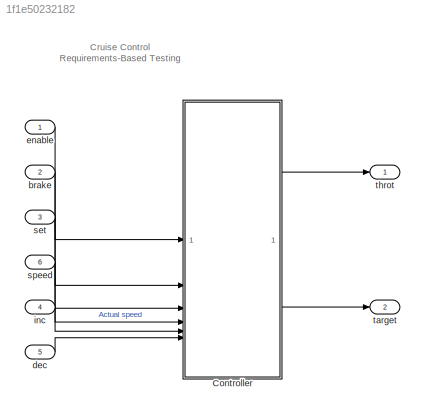
MODEL slx_1f1e50232182
KIND model
CONFIG AbsTol = auto
CONFIG EnableMultiTasking = on
CONFIG FixedStep = 0.01
CONFIG MaxStep = auto
CONFIG MinStep = auto
CONFIG RelTol = 1e-3
CONFIG SampleTimeConstraint = Unconstrained
CONFIG SolverName = FixedStepDiscrete
CONFIG StartTime = 0.0
CONFIG StopTime = 10.0
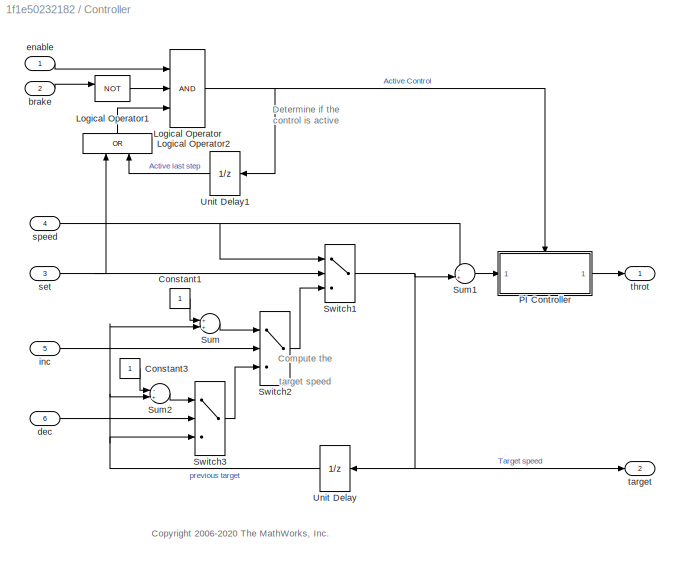
BLOCK [SubSystem] Controller
BLOCK [Constant] Controller/Constant1
BLOCK [Constant] Controller/Constant3
BLOCK [Logic] Controller/Logical Operator
  AllPortsSameDT = off
  Inputs = 3
  OutDataTypeStr = boolean
BLOCK [Logic] Controller/Logical Operator1
  AllPortsSameDT = off
  Operator = NOT
  OutDataTypeStr = boolean
BLOCK [Logic] Controller/Logical Operator2
  AllPortsSameDT = off
  NameLocation = right
  Operator = OR
  OutDataTypeStr = boolean
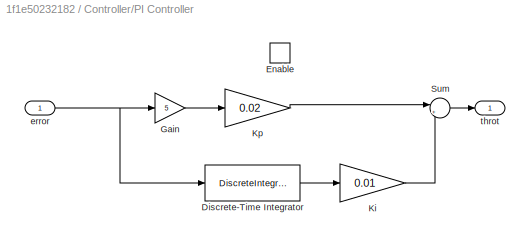
BLOCK [SubSystem] Controller/PI Controller
BLOCK [DiscreteIntegrator] Controller/PI Controller/Discrete-Time Integrator
  ICPrevOutput = DiscIntNeverNeededParam
  ICPrevScaledInput = DiscIntNeverNeededParam
  LimitOutput = on
  LowerSaturationLimit = -5
  SampleTime = 0.01
  UpperSaturationLimit = 5
BLOCK [EnablePort] Controller/PI Controller/Enable
BLOCK [Gain] Controller/PI Controller/Gain
  Gain = 5
BLOCK [Gain] Controller/PI Controller/Ki
  Gain = 0.01
BLOCK [Gain] Controller/PI Controller/Kp
  Gain = 0.02
BLOCK [Sum] Controller/PI Controller/Sum
  Inputs = |++
BLOCK [Inport] Controller/PI Controller/error
BLOCK [Outport] Controller/PI Controller/throt
  VectorParamsAs1DForOutWhenUnconnected = off
BLOCK [Sum] Controller/Sum
  Inputs = ++|
BLOCK [Sum] Controller/Sum1
  Inputs = -+|
BLOCK [Sum] Controller/Sum2
  Inputs = -+|
BLOCK [Switch] Controller/Switch1
  Criteria = u2 ~= 0
  InputSameDT = off
  SaturateOnIntegerOverflow = off
BLOCK [Switch] Controller/Switch2
  Criteria = u2 ~= 0
  InputSameDT = off
  SaturateOnIntegerOverflow = off
BLOCK [Switch] Controller/Switch3
  Criteria = u2 ~= 0
  InputSameDT = off
  SaturateOnIntegerOverflow = off
BLOCK [UnitDelay] Controller/Unit Delay
  HasFrameUpgradeWarning = on
  NameLocation = top
  SampleTime = 0.01
BLOCK [UnitDelay] Controller/Unit Delay1
  HasFrameUpgradeWarning = on
  NameLocation = top
  SampleTime = 0.01
BLOCK [Inport] Controller/brake
  OutDataTypeStr = boolean
  Port = 2
BLOCK [Inport] Controller/dec
  OutDataTypeStr = boolean
  Port = 6
BLOCK [Inport] Controller/enable
  NameLocation = top
  OutDataTypeStr = boolean
BLOCK [Inport] Controller/inc
  OutDataTypeStr = boolean
  Port = 5
BLOCK [Inport] Controller/set
  OutDataTypeStr = boolean
  Port = 3
BLOCK [Inport] Controller/speed
  OutDataTypeStr = double
  Port = 4
BLOCK [Outport] Controller/target
  Port = 2
  VectorParamsAs1DForOutWhenUnconnected = off
BLOCK [Outport] Controller/throt
  VectorParamsAs1DForOutWhenUnconnected = off
BLOCK [Inport] brake
  OutDataTypeStr = boolean
  Port = 2
BLOCK [Inport] dec
  OutDataTypeStr = boolean
  Port = 5
BLOCK [Inport] enable
  OutDataTypeStr = boolean
BLOCK [Inport] inc
  OutDataTypeStr = boolean
  Port = 4
BLOCK [Inport] set
  OutDataTypeStr = boolean
  Port = 3
BLOCK [Inport] speed
  OutDataTypeStr = double
  Port = 6
BLOCK [Outport] target
  Port = 2
  VectorParamsAs1DForOutWhenUnconnected = off
BLOCK [Outport] throt
  VectorParamsAs1DForOutWhenUnconnected = off
ANNOTATION (root): Cruise Control Requirements-Based Testing
ANNOTATION Controller: Compute the target speed
ANNOTATION Controller: <copyright redacted>
ANNOTATION Controller: Determine if the control is active
LINE Controller/Constant1:1 -> Controller/Sum:1
LINE Controller/Constant3:1 -> Controller/Sum2:1
LINE Controller/Logical Operator1:1 -> Controller/Logical Operator:2
LINE Controller/Logical Operator2:1 -> Controller/Logical Operator:3
NET Controller/Logical Operator:1 -> Controller/PI Controller:enable, Controller/Unit Delay1:1
LINE Controller/PI Controller/Discrete-Time Integrator:1 -> Controller/PI Controller/Ki:1
LINE Controller/PI Controller/Gain:1 -> Controller/PI Controller/Kp:1
LINE Controller/PI Controller/Ki:1 -> Controller/PI Controller/Sum:2
LINE Controller/PI Controller/Kp:1 -> Controller/PI Controller/Sum:1
LINE Controller/PI Controller/Sum:1 -> Controller/PI Controller/throt:1
NET Controller/PI Controller/error:1 -> Controller/PI Controller/Discrete-Time Integrator:1, Controller/PI Controller/Gain:1
LINE Controller/PI Controller:1 -> Controller/throt:1
LINE Controller/Sum1:1 -> Controller/PI Controller:1
LINE Controller/Sum2:1 -> Controller/Switch3:1
LINE Controller/Sum:1 -> Controller/Switch2:1
NET Controller/Switch1:1 -> Controller/Sum1:2, Controller/Unit Delay:1, Controller/target:1
LINE Controller/Switch2:1 -> Controller/Switch1:3
LINE Controller/Switch3:1 -> Controller/Switch2:3
LINE Controller/Unit Delay1:1 -> Controller/Logical Operator2:2
NET Controller/Unit Delay:1 -> Controller/Sum2:2, Controller/Sum:2, Controller/Switch3:3
LINE Controller/brake:1 -> Controller/Logical Operator1:1
LINE Controller/dec:1 -> Controller/Switch3:2
LINE Controller/enable:1 -> Controller/Logical Operator:1
LINE Controller/inc:1 -> Controller/Switch2:2
NET Controller/set:1 -> Controller/Logical Operator2:1, Controller/Switch1:2
NET Controller/speed:1 -> Controller/Sum1:1, Controller/Switch1:1
LINE Controller:1 -> throt:1
LINE Controller:2 -> target:1
LINE brake:1 -> Controller:2
LINE dec:1 -> Controller:6
LINE enable:1 -> Controller:1
LINE inc:1 -> Controller:5
LINE set:1 -> Controller:3
LINE speed:1 -> Controller:4
note: NET lines group one-source signal fan-out (src -> all destinations, sorted); 1:1 wires keep LINE
